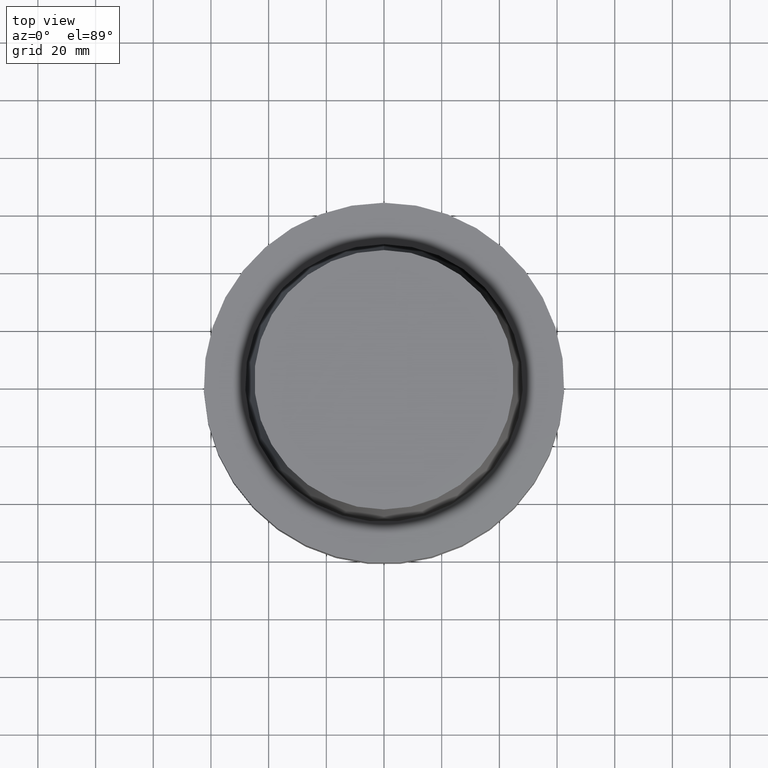
[diagram: clean part render]
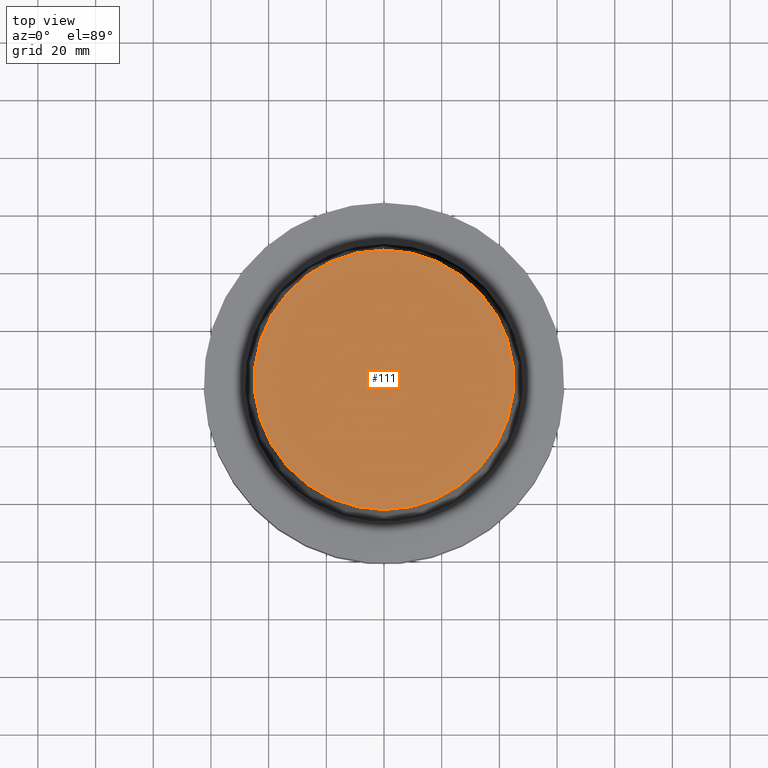
[diagram: same view with one face highlighted and labeled with its STEP entity id]
A machine part, top view. The second image highlights one B-rep face of the part: STEP entity #111.
In plain terms, the highlighted planar face has unit normal (-0, -0, 1).
Its self-contained STEP definition (entity closure, byte-faithful):
#86=EDGE_CURVE('Unnamed[1]',#207,#207,#208,.T.);
#111=ADVANCED_FACE('Unnamed[1]',(#245),#246,.T.);
#207=VERTEX_POINT('',#365);
#208=CIRCLE('',#366,44.9779398797591);
#245=FACE_OUTER_BOUND('',#413,.T.);
#246=PLANE('',#414);
#365=CARTESIAN_POINT('',(-3.85763741731416E-015,44.9779398797591,62.9999999999999));
#366=AXIS2_PLACEMENT_3D('',#535,#536,#537);
#413=EDGE_LOOP('',(#577));
#414=AXIS2_PLACEMENT_3D('',#578,#579,#580);
#535=CARTESIAN_POINT('',(-3.85763741731416E-015,-7.71527483462831E-015,62.9999999999999));
#536=DIRECTION('',(6.12323399573677E-017,1.22464679914735E-016,-1.0));
#537=DIRECTION('',(-1.23259516440783E-032,1.0,1.22464679914735E-016));
#577=ORIENTED_EDGE('',*,*,#86,.F.);
#578=CARTESIAN_POINT('',(-3.85763741731416E-015,22.4889699398795,62.9999999999999));
#579=DIRECTION('',(-6.12323399573677E-017,-1.22464679914735E-016,1.0));
#580=DIRECTION('',(1.23259516440783E-032,-1.0,-1.22464679914735E-016));